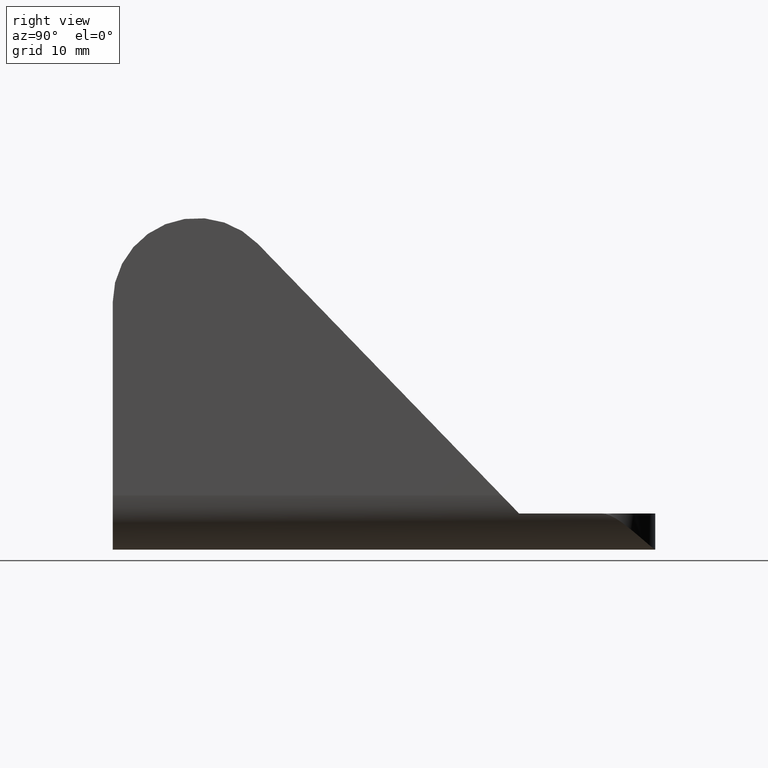
[diagram: clean part render]
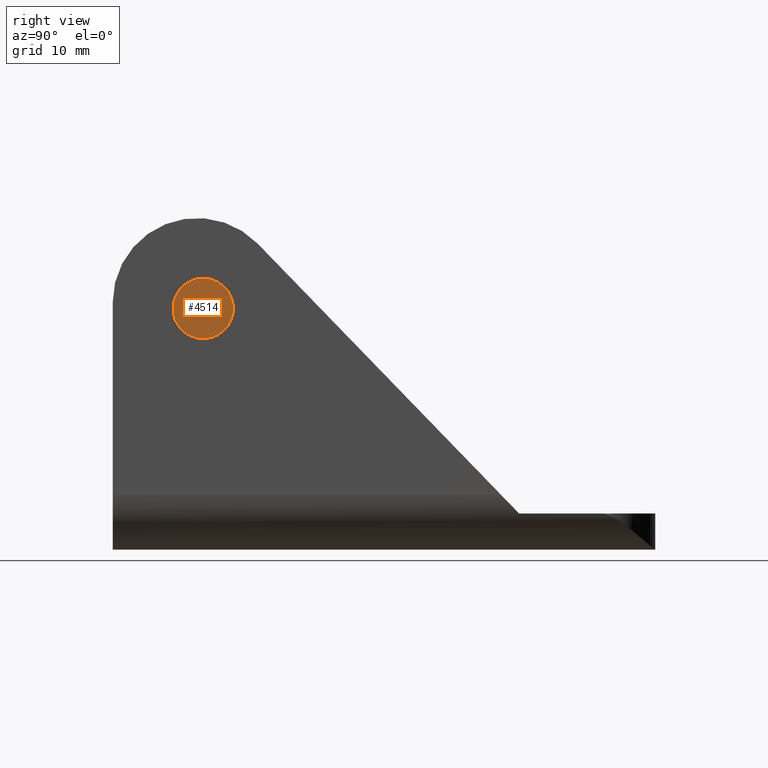
[diagram: same view with one face highlighted and labeled with its STEP entity id]
A machine part, right view. The second image highlights one B-rep face of the part: STEP entity #4514.
In plain terms, the highlighted planar face has unit normal (1, 0, -0).
Its self-contained STEP definition (entity closure, byte-faithful):
#61 = CARTESIAN_POINT ( 'NONE',  ( 15.00000000000000000, -15.00000000000000888, 6.249999999999998224 ) ) ;
#738 = AXIS2_PLACEMENT_3D ( 'NONE', #61, #15630, #4983 ) ;
#991 = EDGE_CURVE ( 'NONE', #5265, #5265, #10615, .T. ) ;
#1037 = DIRECTION ( 'NONE',  ( 1.000000000000000000, 0.000000000000000000, -0.000000000000000000 ) ) ;
#1391 = AXIS2_PLACEMENT_3D ( 'NONE', #12148, #1037, #10886 ) ;
#3901 = CARTESIAN_POINT ( 'NONE',  ( 15.00000000000000000, -15.00000000000000888, 3.749999999999998224 ) ) ;
#4514 = ADVANCED_FACE ( 'NONE', ( #12614 ), #15656, .T. ) ;
#4983 = DIRECTION ( 'NONE',  ( 0.000000000000000000, 0.000000000000000000, -1.000000000000000000 ) ) ;
#5265 = VERTEX_POINT ( 'NONE', #3901 ) ;
#6324 = EDGE_LOOP ( 'NONE', ( #8432 ) ) ;
#8432 = ORIENTED_EDGE ( 'NONE', *, *, #991, .T. ) ;
#10615 = CIRCLE ( 'NONE', #738, 2.500000000000000444 ) ;
#10886 = DIRECTION ( 'NONE',  ( -0.000000000000000000, 0.000000000000000000, -1.000000000000000000 ) ) ;
#12148 = CARTESIAN_POINT ( 'NONE',  ( 15.00000000000000000, -15.00000000000000888, 6.249999999999998224 ) ) ;
#12614 = FACE_OUTER_BOUND ( 'NONE', #6324, .T. ) ;
#15630 = DIRECTION ( 'NONE',  ( 1.000000000000000000, -0.000000000000000000, -0.000000000000000000 ) ) ;
#15656 = PLANE ( 'NONE',  #1391 ) ;